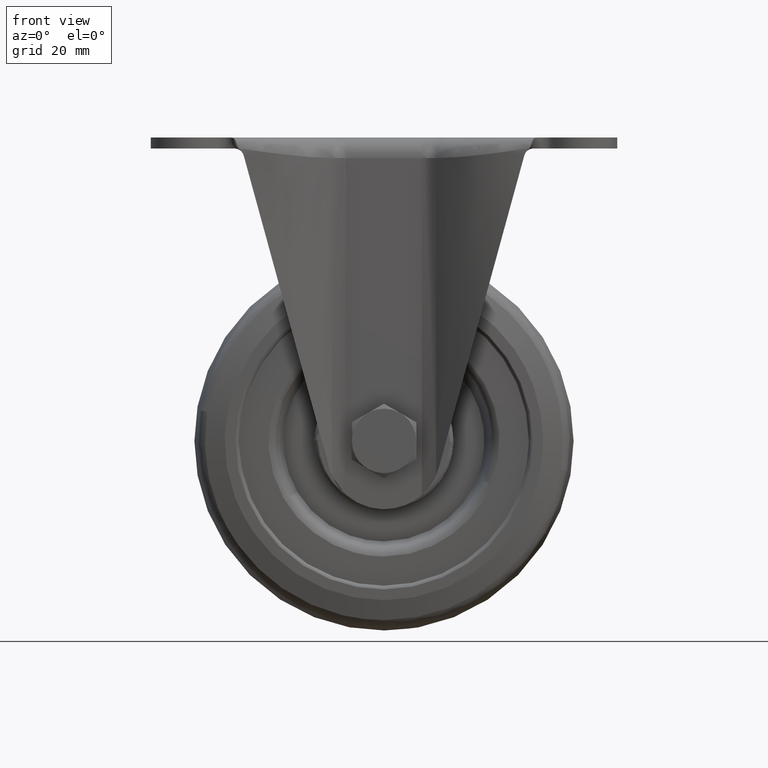
[diagram: clean part render]
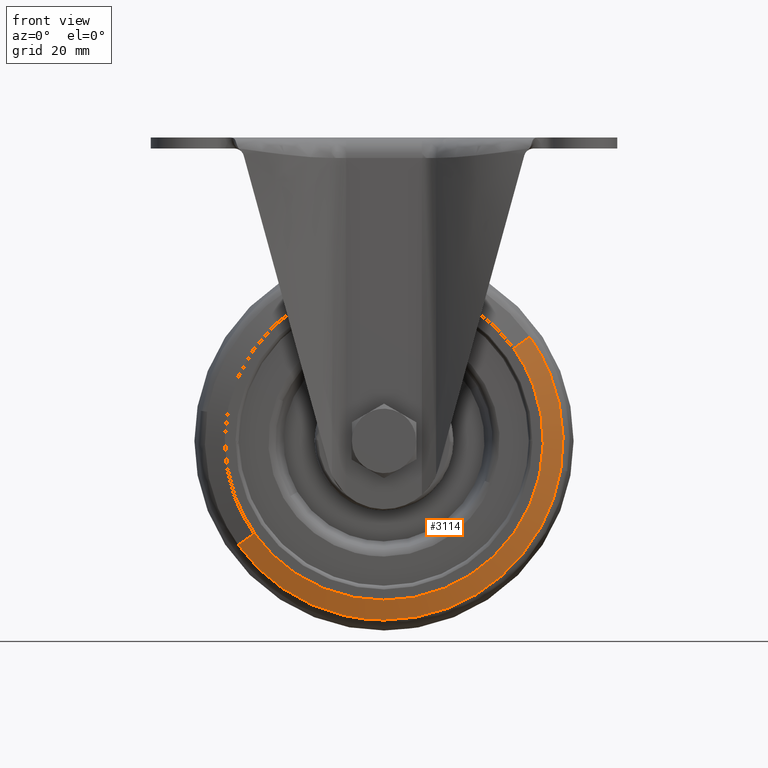
[diagram: same view with one face highlighted and labeled with its STEP entity id]
A machine part, front view. The second image highlights one B-rep face of the part: STEP entity #3114.
In plain terms, the highlighted face is a freeform B-spline surface patch.
Its self-contained STEP definition (entity closure, byte-faithful):
#2602=CARTESIAN_POINT('',(46.608469750451519,-17.457259997087750,-87.682555365382882));
#2603=VERTEX_POINT('',#2602);
#2617=CARTESIAN_POINT('',(0.0,-17.457260000000030,-127.237391000000000));
#2618=VERTEX_POINT('',#2617);
#2619=CARTESIAN_POINT('',(0.0,-17.457260000000030,-127.237391000000000));
#2620=CARTESIAN_POINT('',(40.088577194478674,-17.457259998543886,-127.237391000804000));
#2621=CARTESIAN_POINT('',(46.608469750451512,-17.457259997087753,-87.682555365382882));
#2629=(BOUNDED_CURVE()B_SPLINE_CURVE(2,(#2619,#2620,#2621),.UNSPECIFIED.,.F.,.U.)B_SPLINE_CURVE_WITH_KNOTS((3,3),(0.0,0.222006108798301),.UNSPECIFIED.)CURVE()GEOMETRIC_REPRESENTATION_ITEM()RATIONAL_B_SPLINE_CURVE((1.0,0.739903664791265,0.941751131921648))REPRESENTATION_ITEM(''));
#2630=EDGE_CURVE('',#2618,#2603,#2629,.T.);
#2632=CARTESIAN_POINT('',(-38.456693062976882,-17.457259998599870,-107.430892576080500));
#2633=VERTEX_POINT('',#2632);
#2634=CARTESIAN_POINT('',(-38.456693062976896,-17.457259998599870,-107.430892576080480));
#2635=CARTESIAN_POINT('',(-24.328855032725414,-17.457259999471795,-127.237390999667300));
#2636=CARTESIAN_POINT('',(0.0,-17.457260000000030,-127.237391000000000));
#2644=(BOUNDED_CURVE()B_SPLINE_CURVE(2,(#2634,#2635,#2636),.UNSPECIFIED.,.F.,.U.)B_SPLINE_CURVE_WITH_KNOTS((3,3),(0.849924290343798,1.0),.UNSPECIFIED.)CURVE()GEOMETRIC_REPRESENTATION_ITEM()RATIONAL_B_SPLINE_CURVE((0.859446788444579,0.824175369332328,1.0))REPRESENTATION_ITEM(''));
#2645=EDGE_CURVE('',#2633,#2618,#2644,.T.);
#2726=CARTESIAN_POINT('',(38.456693062976889,-17.457259998599859,-52.569107423919519));
#2727=VERTEX_POINT('',#2726);
#2741=CARTESIAN_POINT('',(46.608469750451512,-17.457259997087753,-87.682555365382882));
#2742=CARTESIAN_POINT('',(47.237391009421430,-17.457259997210375,-83.867020547084394));
#2743=CARTESIAN_POINT('',(47.237391009027597,-17.457259997352200,-80.000000001478682));
#2744=CARTESIAN_POINT('',(47.237391007487687,-17.457259997906753,-64.879191926915666));
#2745=CARTESIAN_POINT('',(38.456693062976896,-17.457259998599859,-52.569107423919526));
#2753=(BOUNDED_CURVE()B_SPLINE_CURVE(2,(#2741,#2742,#2743,#2744,#2745),.UNSPECIFIED.,.F.,.U.)B_SPLINE_CURVE_WITH_KNOTS((3,2,3),(0.222006108798301,0.250000000000000,0.349924290343798),.UNSPECIFIED.)CURVE()GEOMETRIC_REPRESENTATION_ITEM()RATIONAL_B_SPLINE_CURVE((0.941751131921648,0.967203116395283,1.0,0.882931411854220,0.859446788444579))REPRESENTATION_ITEM(''));
#2754=EDGE_CURVE('',#2603,#2727,#2753,.T.);
#3010=CARTESIAN_POINT('',(-34.192851770963031,-18.999999999999950,-104.389524139863100));
#3011=VERTEX_POINT('',#3010);
#3012=CARTESIAN_POINT('',(-34.192851770963031,-18.999999999999950,-104.389524139863100));
#3013=CARTESIAN_POINT('',(-38.456693062976882,-17.457259998599870,-107.430892576080500));
#3014=QUASI_UNIFORM_CURVE('',1,(#3012,#3013),.UNSPECIFIED.,.F.,.U.);
#3015=EDGE_CURVE('',#3011,#2633,#3014,.T.);
#3034=CARTESIAN_POINT('',(34.192851770963031,-18.999999999999950,-55.610475860136901));
#3035=VERTEX_POINT('',#3034);
#3049=CARTESIAN_POINT('',(34.192851770963031,-18.999999999999950,-55.610475860136901));
#3050=CARTESIAN_POINT('',(38.456693062976889,-17.457259998599859,-52.569107423919519));
#3051=QUASI_UNIFORM_CURVE('',1,(#3049,#3050),.UNSPECIFIED.,.F.,.U.);
#3052=EDGE_CURVE('',#3035,#2727,#3051,.T.);
#3059=CARTESIAN_POINT('',(34.086255738544160,-19.038568500072810,-55.686510071131920));
#3060=CARTESIAN_POINT('',(58.399745667412247,-19.038568500072810,-89.772765809676088));
#3061=CARTESIAN_POINT('',(24.313489928868080,-19.038568500072810,-114.086255738544200));
#3062=CARTESIAN_POINT('',(-9.772765809676084,-19.038568500072810,-138.399745667412250));
#3063=CARTESIAN_POINT('',(-34.086255738544160,-19.038568500072810,-104.313489928868090));
#3064=CARTESIAN_POINT('',(38.565954001046087,-17.417727284513131,-52.491172354219039));
#3065=CARTESIAN_POINT('',(66.074781646827063,-17.417727284513123,-91.057126355265112));
#3066=CARTESIAN_POINT('',(27.508827645780961,-17.417727284513131,-118.565954001046090));
#3067=CARTESIAN_POINT('',(-11.057126355265133,-17.417727284513123,-146.074781646827120));
#3068=CARTESIAN_POINT('',(-38.565954001046087,-17.417727284513131,-107.508827645781000));
#3076=(BOUNDED_SURFACE()B_SPLINE_SURFACE(2,1,((#3059,#3064),(#3060,#3065),(#3061,#3066),(#3062,#3067),(#3063,#3068)),.UNSPECIFIED.,.F.,.F.,.U.)B_SPLINE_SURFACE_WITH_KNOTS((3,2,3),(2,2),(0.0,78.487835364408539,156.975670728817110),(0.0,5.736288512117042),.UNSPECIFIED.)GEOMETRIC_REPRESENTATION_ITEM()RATIONAL_B_SPLINE_SURFACE(((1.0,1.0),(0.707106781186548,0.707106781186548),(1.0,1.0),(0.707106781186548,0.707106781186548),(1.0,1.0)))REPRESENTATION_ITEM('')SURFACE());
#3077=ORIENTED_EDGE('',*,*,#2645,.T.);
#3078=ORIENTED_EDGE('',*,*,#2630,.T.);
#3079=ORIENTED_EDGE('',*,*,#2754,.T.);
#3080=ORIENTED_EDGE('',*,*,#3052,.F.);
#3081=CARTESIAN_POINT('',(0.0,-19.0,-122.0));
#3082=VERTEX_POINT('',#3081);
#3083=CARTESIAN_POINT('',(0.0,-19.0,-122.0));
#3084=CARTESIAN_POINT('',(41.999999999999993,-18.999999999999996,-121.999999999999990));
#3085=CARTESIAN_POINT('',(42.0,-19.0,-80.0));
#3086=CARTESIAN_POINT('',(42.000000000000007,-19.0,-66.555694004557139));
#3087=CARTESIAN_POINT('',(34.192851770962896,-19.000000000000011,-55.610475860137008));
#3095=(BOUNDED_CURVE()B_SPLINE_CURVE(2,(#3083,#3084,#3085,#3086,#3087),.UNSPECIFIED.,.F.,.U.)B_SPLINE_CURVE_WITH_KNOTS((3,2,3),(0.0,0.250000000000000,0.349924290331321),.UNSPECIFIED.)CURVE()GEOMETRIC_REPRESENTATION_ITEM()RATIONAL_B_SPLINE_CURVE((1.0,0.707106781186547,1.0,0.882931411868838,0.859446788450444))REPRESENTATION_ITEM(''));
#3096=EDGE_CURVE('',#3082,#3035,#3095,.T.);
#3097=ORIENTED_EDGE('',*,*,#3096,.F.);
#3098=CARTESIAN_POINT('',(-34.192851770962896,-19.000000000000011,-104.389524139863030));
#3099=CARTESIAN_POINT('',(-21.631421417556862,-18.999999999999993,-121.999999999999970));
#3100=CARTESIAN_POINT('',(0.0,-19.0,-122.0));
#3108=(BOUNDED_CURVE()B_SPLINE_CURVE(2,(#3098,#3099,#3100),.UNSPECIFIED.,.F.,.U.)B_SPLINE_CURVE_WITH_KNOTS((3,3),(0.849924290331321,1.0),.UNSPECIFIED.)CURVE()GEOMETRIC_REPRESENTATION_ITEM()RATIONAL_B_SPLINE_CURVE((0.859446788450444,0.824175369317709,1.0))REPRESENTATION_ITEM(''));
#3109=EDGE_CURVE('',#3011,#3082,#3108,.T.);
#3110=ORIENTED_EDGE('',*,*,#3109,.F.);
#3111=ORIENTED_EDGE('',*,*,#3015,.T.);
#3112=EDGE_LOOP('',(#3077,#3078,#3079,#3080,#3097,#3110,#3111));
#3113=FACE_OUTER_BOUND('',#3112,.T.);
#3114=ADVANCED_FACE('',(#3113),#3076,.T.);